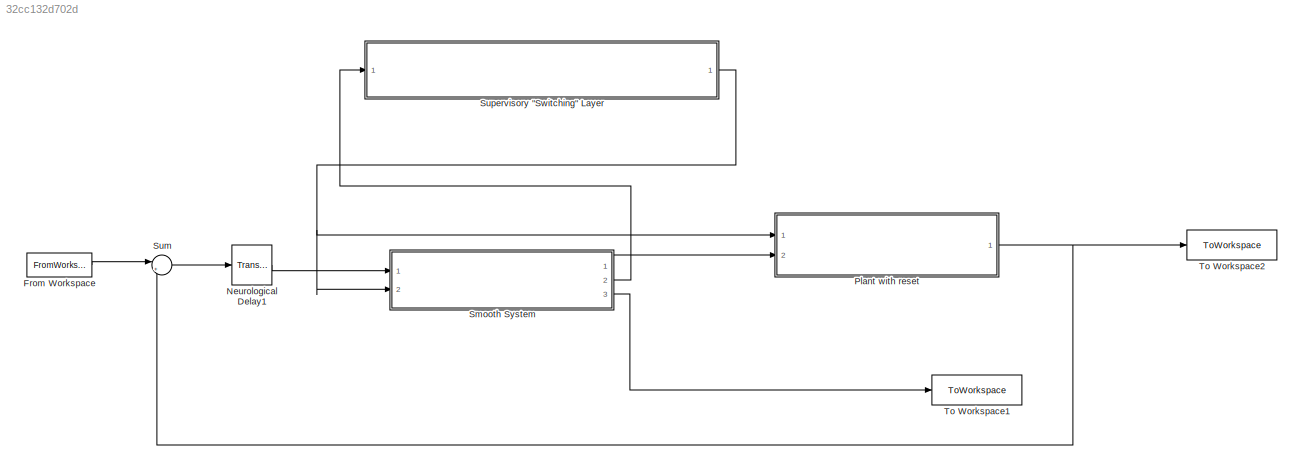
MODEL slx_32cc132d702d
KIND model
CONFIG AbsTol = auto
CONFIG EnableMultiTasking = off
CONFIG FixedStep = 0.005
CONFIG MaxStep = auto
CONFIG MinStep = auto
CONFIG RelTol = 1e-3
CONFIG SampleTimeConstraint = Unconstrained
CONFIG SolverName = FixedStepAuto
CONFIG StartTime = 0
CONFIG StopTime = 5
BLOCK [FromWorkspace] From Workspace
  VariableName = V_in
BLOCK [TransportDelay] Neurological Delay1
  DelayTime = n_delay
  Ports = [1, 1]
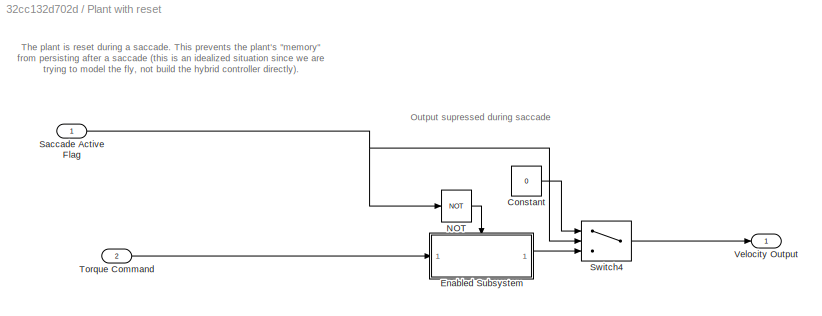
BLOCK [SubSystem] Plant with reset
  Ports = [2, 1]
  RequestExecContextInheritance = off
BLOCK [Constant] Plant with reset/Constant
  Value = 0
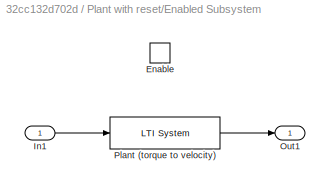
BLOCK [SubSystem] Plant with reset/Enabled Subsystem
  Ports = [1, 1, 1]
  RequestExecContextInheritance = off
  TreatAsAtomicUnit = on
BLOCK [EnablePort] Plant with reset/Enabled Subsystem/Enable
  Ports = []
  StatesWhenEnabling = reset
BLOCK [Inport] Plant with reset/Enabled Subsystem/In1
BLOCK [Outport] Plant with reset/Enabled Subsystem/Out1
BLOCK [Reference] Plant with reset/Enabled Subsystem/Plant (torque to velocity)  REF=cstblocks/LTI System
  Ports = [1, 1]
  SourceBlock = cstblocks/LTI System
  SourceProductBaseCode = CT
  SourceType = LTI Block
BLOCK [Logic] Plant with reset/NOT
  AllPortsSameDT = off
  IconShape = distinctive
  Operator = NOT
  OutDataTypeStr = boolean
  Ports = [1, 1]
BLOCK [Inport] Plant with reset/Saccade Active Flag
BLOCK [Switch] Plant with reset/Switch4
  Criteria = u2 ~= 0
  InputSameDT = off
  SaturateOnIntegerOverflow = off
BLOCK [Inport] Plant with reset/Torque Command
  Port = 2
BLOCK [Outport] Plant with reset/Velocity Output
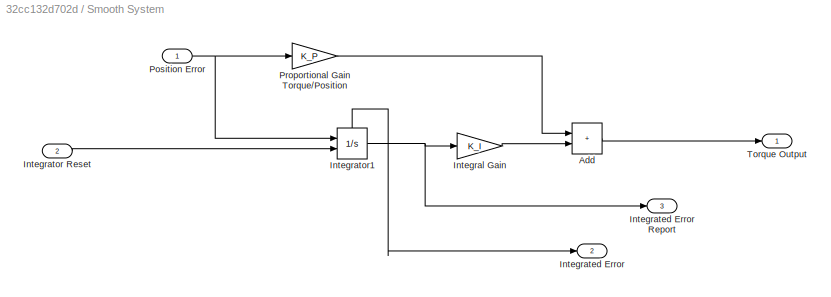
BLOCK [SubSystem] Smooth System
  Ports = [2, 3]
  RequestExecContextInheritance = off
BLOCK [Sum] Smooth System/Add
  IconShape = rectangular
  Ports = [2, 1]
BLOCK [Gain] Smooth System/Integral Gain 
  Gain = K_I
BLOCK [Outport] Smooth System/Integrated Error
  Port = 2
BLOCK [Outport] Smooth System/Integrated Error Report
  Port = 3
BLOCK [Inport] Smooth System/Integrator Reset
  Port = 2
BLOCK [Integrator] Smooth System/Integrator1
  ExternalReset = level hold
  Ports = [2, 1, 0, 0, 1]
  ShowStatePort = on
BLOCK [Inport] Smooth System/Position Error
BLOCK [Gain] Smooth System/Proportional Gain Torque//Position
  Gain = K_P
BLOCK [Outport] Smooth System/Torque Output
BLOCK [Sum] Sum
  Inputs = |+-
  Ports = [2, 1]
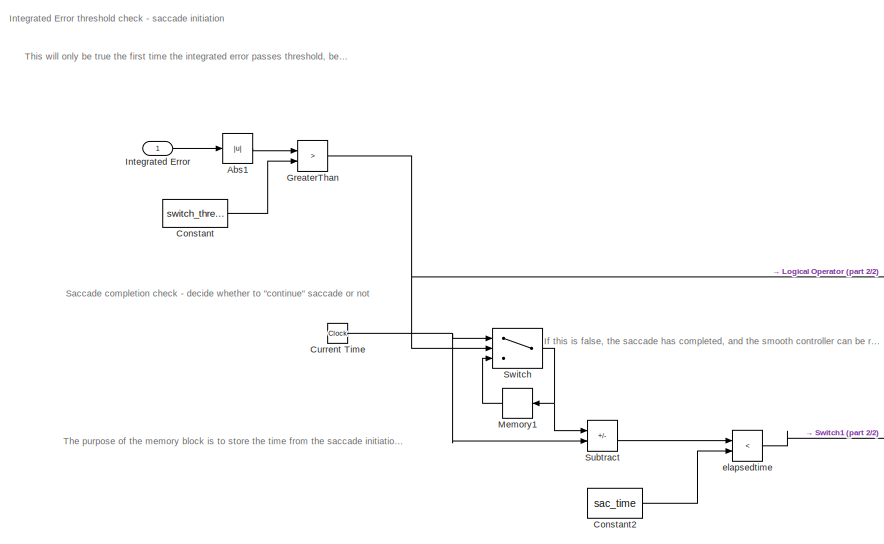
[diagram: Supervisory "Switching" Layer - part 1/2, left side, full height]
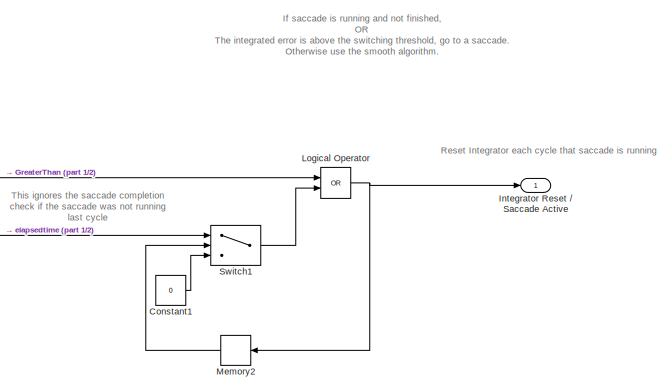
[diagram: Supervisory "Switching" Layer - part 2/2, bottom right region]
BLOCK [SubSystem] Supervisory "Switching" Layer
  Ports = [1, 1]
  RequestExecContextInheritance = off
BLOCK [Abs] Supervisory "Switching" Layer/Abs1
  SaturateOnIntegerOverflow = off
  ZeroCross = off
BLOCK [Constant] Supervisory "Switching" Layer/Constant
  Value = switch_thresh
BLOCK [Constant] Supervisory "Switching" Layer/Constant1
  Value = 0
BLOCK [Constant] Supervisory "Switching" Layer/Constant2
  Value = sac_time
BLOCK [Clock] Supervisory "Switching" Layer/Current Time
  Decimation = 1
BLOCK [RelationalOperator] Supervisory "Switching" Layer/GreaterThan
  InputSameDT = off
  Operator = >
  OutDataTypeStr = boolean
  Ports = [2, 1]
  RndMeth = Simplest
BLOCK [Inport] Supervisory "Switching" Layer/Integrated Error
BLOCK [Outport] Supervisory "Switching" Layer/Integrator Reset // Saccade Active
BLOCK [Logic] Supervisory "Switching" Layer/Logical Operator
  AllPortsSameDT = off
  Operator = OR
  OutDataTypeStr = boolean
  Ports = [2, 1]
BLOCK [Memory] Supervisory "Switching" Layer/Memory1
BLOCK [Memory] Supervisory "Switching" Layer/Memory2
BLOCK [Sum] Supervisory "Switching" Layer/Subtract
  IconShape = rectangular
  Inputs = -+
  Ports = [2, 1]
BLOCK [Switch] Supervisory "Switching" Layer/Switch
  Criteria = u2 > Threshold
  InputSameDT = off
  SaturateOnIntegerOverflow = off
BLOCK [Switch] Supervisory "Switching" Layer/Switch1
  Criteria = u2 > Threshold
  InputSameDT = off
  SaturateOnIntegerOverflow = off
BLOCK [RelationalOperator] Supervisory "Switching" Layer/elapsedtime
  InputSameDT = off
  Operator = <
  OutDataTypeStr = boolean
  Ports = [2, 1]
  RndMeth = Simplest
BLOCK [ToWorkspace] To Workspace1
  FixptAsFi = on
  MaxDataPoints = inf
  Ports = [1]
  SampleTime = -1
  VariableName = interror
BLOCK [ToWorkspace] To Workspace2
  FixptAsFi = on
  MaxDataPoints = inf
  Ports = [1]
  SampleTime = -1
  VariableName = V_out
ANNOTATION Plant with reset: Output supressed during saccade
ANNOTATION Plant with reset: The plant is reset during a saccade. This prevents the plant's "memory" from persisting after a saccade (this is an idealized situation since we are trying to model the fly, not build the hybrid controller directly).
ANNOTATION Supervisory "Switching" Layer: If saccade is running and not finished, OR The integrated error is above the switching threshold, go to a saccade. Otherwise use the smooth algorithm.
ANNOTATION Supervisory "Switching" Layer: If this is false, the saccade has completed, and the smooth controller can be re-enabled.
ANNOTATION Supervisory "Switching" Layer: Integrated Error threshold check - saccade initiation
ANNOTATION Supervisory "Switching" Layer: Reset Integrator each cycle that saccade is running
ANNOTATION Supervisory "Switching" Layer: Saccade completion check - decide whether to "continue" saccade or not
ANNOTATION Supervisory "Switching" Layer: The purpose of the memory block is to store the time from the saccade initiation for comparison to know if the saccade is completed.
ANNOTATION Supervisory "Switching" Layer: This ignores the saccade completion check if the saccade was not running last cycle
ANNOTATION Supervisory "Switching" Layer: This will only be true the first time the integrated error passes threshold, because the integrator will then be reset.
LINE From Workspace:1 -> Sum:1
LINE Neurological Delay1:1 -> Smooth System:1
LINE Plant with reset/Constant:1 -> Plant with reset/Switch4:1
LINE Plant with reset/Enabled Subsystem/In1:1 -> Plant with reset/Enabled Subsystem/Plant (torque to velocity):1
LINE Plant with reset/Enabled Subsystem/Plant (torque to velocity):1 -> Plant with reset/Enabled Subsystem/Out1:1
LINE Plant with reset/Enabled Subsystem:1 -> Plant with reset/Switch4:3
LINE Plant with reset/NOT:1 -> Plant with reset/Enabled Subsystem:enable
NET Plant with reset/Saccade Active Flag:1 -> Plant with reset/NOT:1, Plant with reset/Switch4:2
LINE Plant with reset/Switch4:1 -> Plant with reset/Velocity Output:1
LINE Plant with reset/Torque Command:1 -> Plant with reset/Enabled Subsystem:1
NET Plant with reset:1 -> Sum:2, To Workspace2:1
LINE Smooth System/Add:1 -> Smooth System/Torque Output:1
LINE Smooth System/Integral Gain :1 -> Smooth System/Add:2
LINE Smooth System/Integrator Reset:1 -> Smooth System/Integrator1:2
NET Smooth System/Integrator1:1 -> Smooth System/Integral Gain :1, Smooth System/Integrated Error Report:1
LINE Smooth System/Integrator1:state -> Smooth System/Integrated Error:1
NET Smooth System/Position Error:1 -> Smooth System/Integrator1:1, Smooth System/Proportional Gain Torque//Position:1
LINE Smooth System/Proportional Gain Torque//Position:1 -> Smooth System/Add:1
LINE Smooth System:1 -> Plant with reset:2
LINE Smooth System:2 -> Supervisory "Switching" Layer:1
LINE Smooth System:3 -> To Workspace1:1
LINE Sum:1 -> Neurological Delay1:1
LINE Supervisory "Switching" Layer/Abs1:1 -> Supervisory "Switching" Layer/GreaterThan:1
LINE Supervisory "Switching" Layer/Constant1:1 -> Supervisory "Switching" Layer/Switch1:3
LINE Supervisory "Switching" Layer/Constant2:1 -> Supervisory "Switching" Layer/elapsedtime:2
LINE Supervisory "Switching" Layer/Constant:1 -> Supervisory "Switching" Layer/GreaterThan:2
NET Supervisory "Switching" Layer/Current Time:1 -> Supervisory "Switching" Layer/Subtract:2, Supervisory "Switching" Layer/Switch:1
NET Supervisory "Switching" Layer/GreaterThan:1 -> Supervisory "Switching" Layer/Logical Operator:1, Supervisory "Switching" Layer/Switch:2
LINE Supervisory "Switching" Layer/Integrated Error:1 -> Supervisory "Switching" Layer/Abs1:1
NET Supervisory "Switching" Layer/Logical Operator:1 -> Supervisory "Switching" Layer/Integrator Reset // Saccade Active:1, Supervisory "Switching" Layer/Memory2:1
LINE Supervisory "Switching" Layer/Memory1:1 -> Supervisory "Switching" Layer/Switch:3
LINE Supervisory "Switching" Layer/Memory2:1 -> Supervisory "Switching" Layer/Switch1:2
LINE Supervisory "Switching" Layer/Subtract:1 -> Supervisory "Switching" Layer/elapsedtime:1
LINE Supervisory "Switching" Layer/Switch1:1 -> Supervisory "Switching" Layer/Logical Operator:2
NET Supervisory "Switching" Layer/Switch:1 -> Supervisory "Switching" Layer/Memory1:1, Supervisory "Switching" Layer/Subtract:1
LINE Supervisory "Switching" Layer/elapsedtime:1 -> Supervisory "Switching" Layer/Switch1:1
NET Supervisory "Switching" Layer:1 -> Plant with reset:1, Smooth System:2
note: NET lines group one-source signal fan-out (src -> all destinations, sorted); 1:1 wires keep LINE
